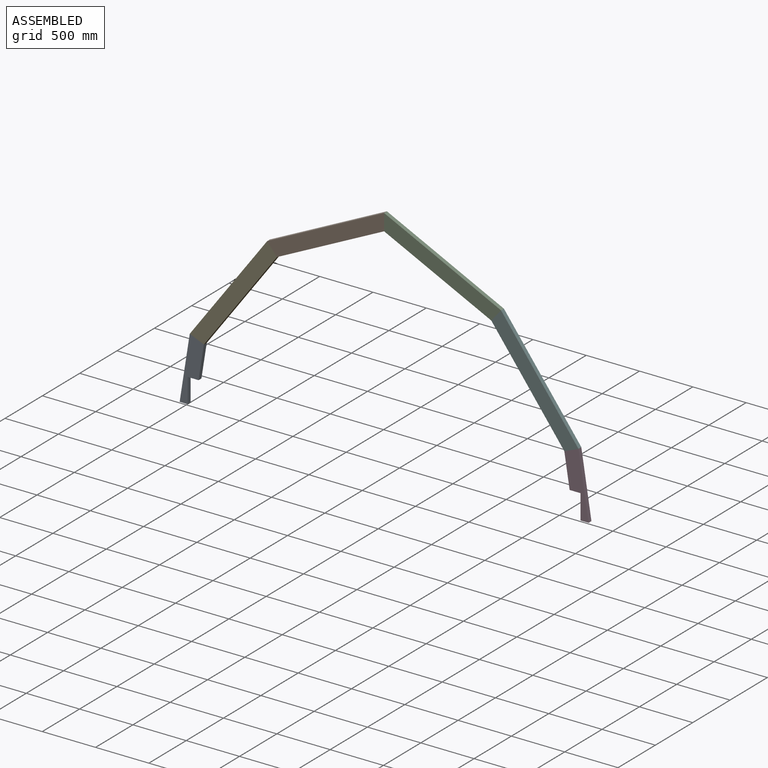
[diagram: assembled view]
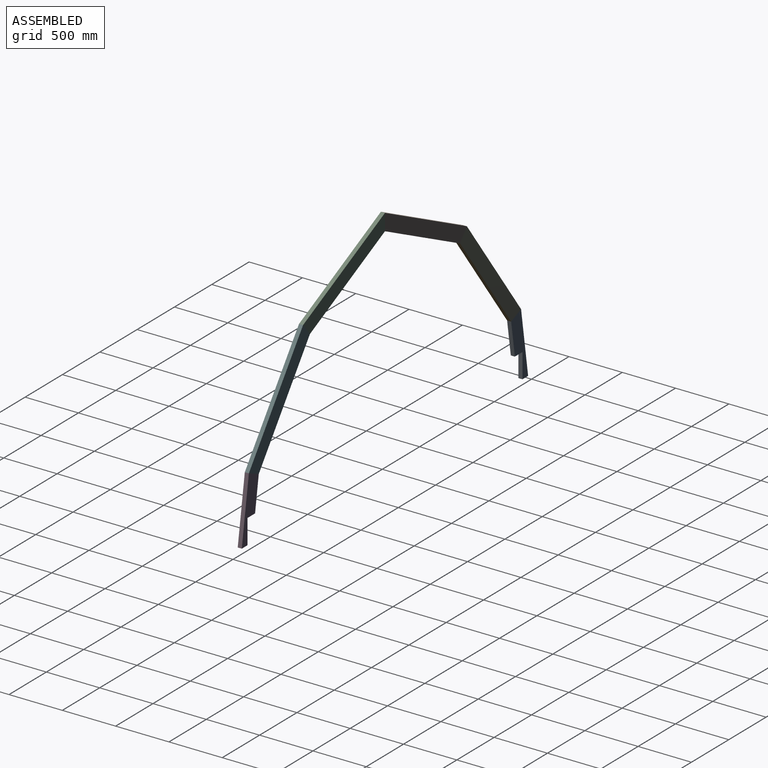
[diagram: assembled view, second angle]
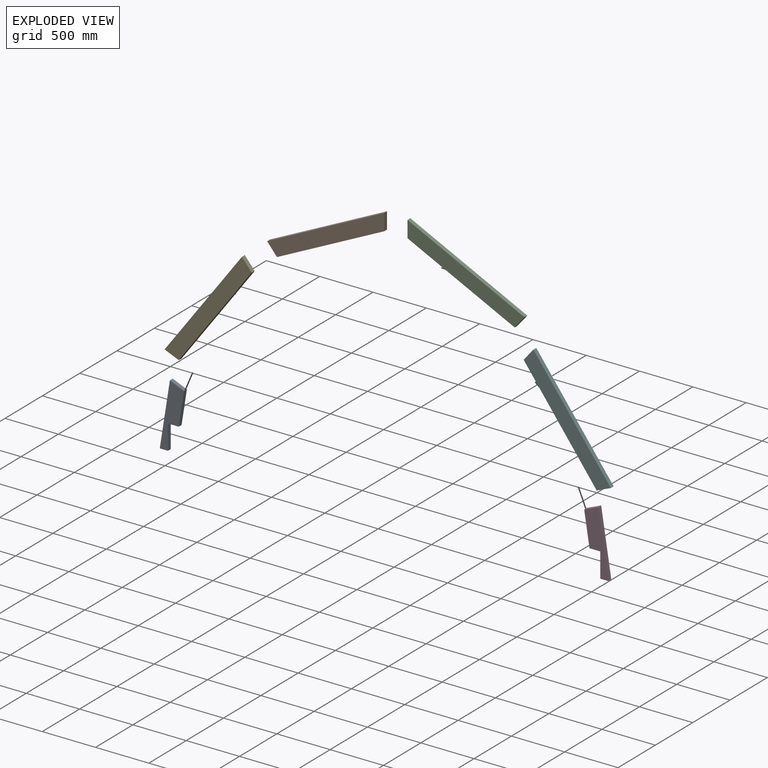
[diagram: exploded view]
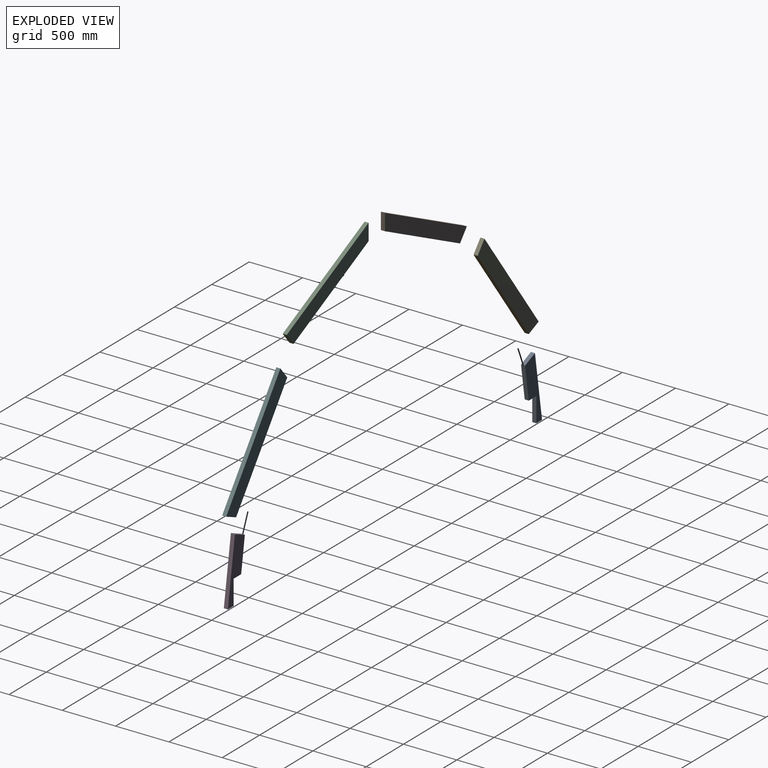
[diagram: exploded view, second angle]
ASSEMBLY  parts=6 mates=5
PART A: 8 faces, bbox 227.4x38.1x602.2 mm
  f0: plane 231.22x38.1mm, normal (1,0,0), area 8809.6mm2, adj f1,f5,f6,f7
  f1: plane 101.6x38.1mm, normal (0,0,-1), area 3871mm2, adj f0,f2,f6,f7
  f2: plane 315.36x49.62mm, normal (0.99,0,-0.16), area 12162.9mm2, adj f1,f3,f6,f7
  f3: plane 132.67x55.61mm, normal (0.39,0,0.92), area 5480.8mm2, adj f2,f4,f6,f7
  f4: plane 602.19x94.75mm, normal (-0.99,0,0.16), area 23225.8mm2, adj f3,f5,f6,f7
  f5: plane 76.2x38.1mm, normal (0,0,-1), area 2903.2mm2, adj f0,f4,f6,f7
  f6: plane 602.19x227.42mm, normal (0,-1,0), area 61942.7mm2, adj f0,f1,f2,f3,f4,f5
  f7: plane 602.19x227.42mm, normal (0,1,0), area 61942.7mm2, adj f0,f1,f2,f3,f4,f5
PART B: 6 faces, bbox 139.7x38.1x1219.2 mm
  f0: plane 1219.2x38.1mm, normal (-1,0,0), area 46451.5mm2, adj f1,f3,f4,f5
  f1: plane 139.7x38.1mm, normal (0.24,0,-0.97), area 5480.6mm2, adj f0,f2,f4,f5
  f2: plane 1117.16x38.1mm, normal (1,0,0), area 42563.8mm2, adj f1,f3,f4,f5
  f3: plane 139.7x67.74mm, normal (0.44,0,0.9), area 5915.3mm2, adj f0,f2,f4,f5
  f4: plane 1219.2x139.7mm, normal (0,-1,0), area 163194.7mm2, adj f0,f1,f2,f3
  f5: plane 1219.2x139.7mm, normal (0,1,0), area 163194.7mm2, adj f0,f1,f2,f3
PART C: same geometry as B
PART D: same geometry as A
PART E: 6 faces, bbox 139.7x38.1x1219.2 mm
  f0: plane 139.7x38.1mm, normal (0.24,0,0.97), area 5480.6mm2, adj f1,f3,f4,f5
  f1: plane 1219.2x38.1mm, normal (-1,0,0), area 46451.5mm2, adj f0,f2,f4,f5
  f2: plane 139.7x38.1mm, normal (0.24,0,-0.97), area 5480.8mm2, adj f1,f3,f4,f5
  f3: plane 1150.59x38.1mm, normal (1,0,0), area 43837.4mm2, adj f0,f2,f4,f5
  f4: plane 1219.2x139.7mm, normal (0,-1,0), area 165529.6mm2, adj f0,f1,f2,f3
  f5: plane 1219.2x139.7mm, normal (0,1,0), area 165529.6mm2, adj f0,f1,f2,f3
PART F: same geometry as E
PLACE A t=(1.46,19.05,1.65)mm fixed
PLACE B rot(axis=(0,1,0),64.1deg) t=(822.13,19.05,1583.38)mm
PLACE C rot(axis=(-0.53,0,0.85),180deg) t=(3016.19,-19.05,1583.38)mm
PLACE D rot(axis=(0,0,1),180deg) t=(3836.86,-19.05,1.65)mm
PLACE E rot(axis=(0,1,0),36.5deg) t=(96.21,19.05,603.85)mm
PLACE F rot(axis=(0.31,0,-0.95),180deg) t=(3742.11,-19.05,603.85)mm
MATE fastened F.f2 <-> D.f3  axis (0.39,0,-0.92) through (3742.11,-19.05,603.85)mm
MATE fastened C.f1 <-> F.f0  axis (0.77,0,-0.64) through (3016.19,-19.05,1583.38)mm
MATE fastened B.f3 <-> C.f3  axis (1,0,0) through (1919.16,-19.05,2115.34)mm
MATE fastened A.f3 <-> E.f2  axis (0.39,0,0.92) through (96.21,-19.05,603.85)mm
MATE fastened E.f0 <-> B.f1  axis (0.77,0,0.64) through (822.13,-19.05,1583.38)mm
